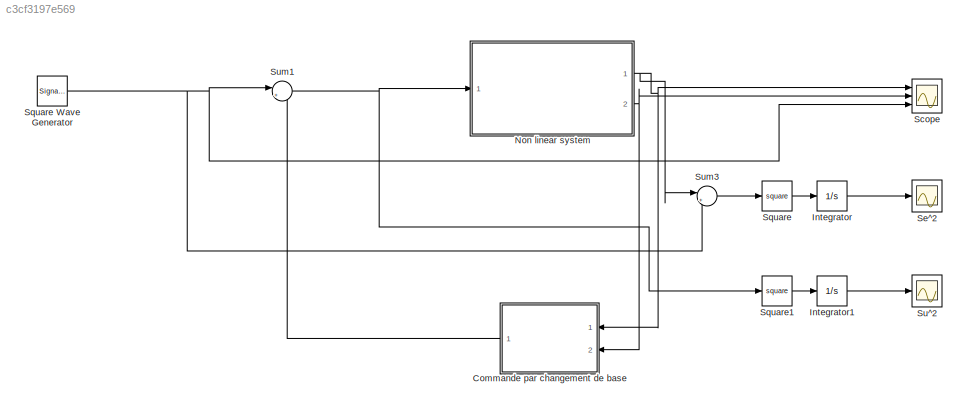
MODEL slx_c3cf3197e569
KIND model
CONFIG AbsTol = auto
CONFIG EnableMultiTasking = off
CONFIG FixedStep = auto
CONFIG MaxStep = auto
CONFIG MinStep = auto
CONFIG RelTol = 1e-3
CONFIG SampleTimeConstraint = Unconstrained
CONFIG Solver = VariableStepAuto
CONFIG SolverName = VariableStepAuto
CONFIG StartTime = 0.0
CONFIG StopTime = 100
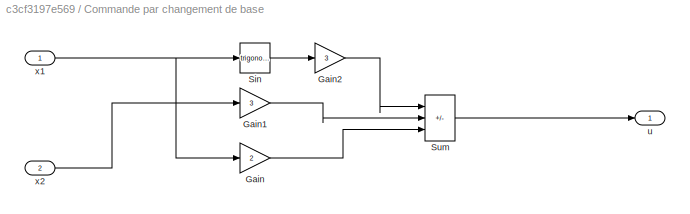
BLOCK [SubSystem] Commande par changement de base
  NameLocation = top
  Ports = [2, 1]
  RequestExecContextInheritance = off
BLOCK [Gain] Commande par changement de base/Gain
  Gain = 2
BLOCK [Gain] Commande par changement de base/Gain1
  Gain = 3
BLOCK [Gain] Commande par changement de base/Gain2
  Gain = 3
BLOCK [Trigonometry] Commande par changement de base/Sin
  Ports = [1, 1]
BLOCK [Sum] Commande par changement de base/Sum
  IconShape = rectangular
  Inputs = |---
  Ports = [3, 1]
BLOCK [Outport] Commande par changement de base/u
BLOCK [Inport] Commande par changement de base/x1
BLOCK [Inport] Commande par changement de base/x2
  Port = 2
BLOCK [Integrator] Integrator
  Ports = [1, 1]
BLOCK [Integrator] Integrator1
  Ports = [1, 1]
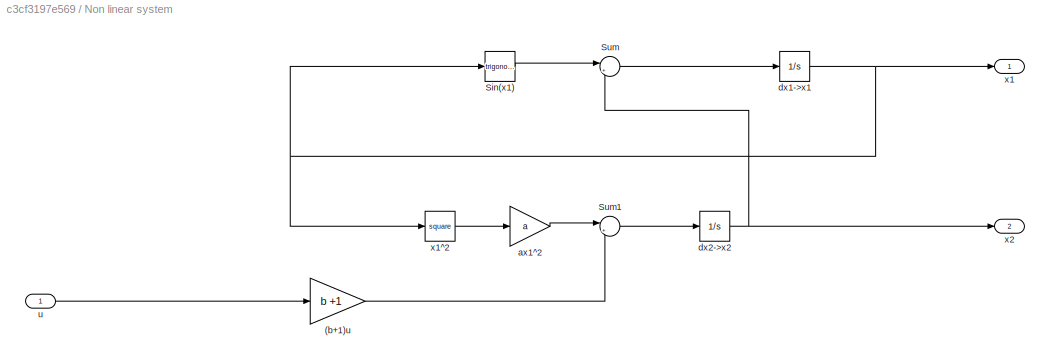
BLOCK [SubSystem] Non linear system
  Ports = [1, 2]
  RequestExecContextInheritance = off
BLOCK [Gain] Non linear system/(b+1)u
  Gain = b +1
BLOCK [Trigonometry] Non linear system/Sin(x1)
  Ports = [1, 1]
BLOCK [Sum] Non linear system/Sum
  Inputs = |++
  Ports = [2, 1]
BLOCK [Sum] Non linear system/Sum1
  Inputs = |++
  Ports = [2, 1]
BLOCK [Gain] Non linear system/ax1^2
  Gain = a
BLOCK [Integrator] Non linear system/dx1->x1
  Ports = [1, 1]
BLOCK [Integrator] Non linear system/dx2->x2
  Ports = [1, 1]
BLOCK [Inport] Non linear system/u
BLOCK [Outport] Non linear system/x1
BLOCK [Math] Non linear system/x1^2
  Operator = square
  Ports = [1, 1]
BLOCK [Outport] Non linear system/x2
  Port = 2
BLOCK [Scope] Scope
  Floating = off
  NumInputPorts = 3
  Ports = [3]
  ScopeSpecificationString = Simulink.scopes.TimeScopeBlockCfg('CurrentConfiguration', extmgr.ConfigurationSet(extmgr.Configuration('Core','General UI',true),extmgr.Configuration('Core','Source UI',true),extmgr.Configuration('Sources','WiredSimulink',true),extmgr.Configuration('Visuals','Time Domain',true,'SerializedDisplays',{struct('MinYLimReal','-1.25324','MaxYLimReal','1.27912','YLabelReal','','MinYLimMag','0.00000','MaxY...<+1385ch>
BLOCK [Scope] Se^2
  Floating = off
  NumInputPorts = 1
  Ports = [1]
  ScopeSpecificationString = Simulink.scopes.TimeScopeBlockCfg('CurrentConfiguration', extmgr.ConfigurationSet(extmgr.Configuration('Core','General UI',true),extmgr.Configuration('Core','Source UI',true),extmgr.Configuration('Sources','WiredSimulink',true,'DataLoggingVariableName','ScopeData1'),extmgr.Configuration('Visuals','Time Domain',true,'SerializedDisplays',{struct('MinYLimReal','-3.68613','MaxYLimReal','33.1752','YLab...<+1369ch>
BLOCK [Math] Square
  Operator = square
  Ports = [1, 1]
BLOCK [SignalGenerator] Square Wave Generator
  Frequency = 0.1
  Ports = [0, 1]
  Units = rad/sec
  WaveForm = square
BLOCK [Math] Square1
  Operator = square
  Ports = [1, 1]
BLOCK [Scope] Su^2
  Floating = off
  NumInputPorts = 1
  Ports = [1]
  ScopeSpecificationString = Simulink.scopes.TimeScopeBlockCfg('CurrentConfiguration', extmgr.ConfigurationSet(extmgr.Configuration('Core','General UI',true),extmgr.Configuration('Core','Source UI',true),extmgr.Configuration('Sources','WiredSimulink',true,'DataLoggingVariableName','ScopeData2'),extmgr.Configuration('Visuals','Time Domain',true,'SerializedDisplays',{struct('MinYLimReal','-0.46841','MaxYLimReal','4.21573','YLab...<+1370ch>
BLOCK [Sum] Sum1
  Inputs = |++
  Ports = [2, 1]
BLOCK [Sum] Sum3
  Inputs = |+-
  Ports = [2, 1]
LINE Commande par changement de base/Gain1:1 -> Commande par changement de base/Sum:2
LINE Commande par changement de base/Gain2:1 -> Commande par changement de base/Sum:1
LINE Commande par changement de base/Gain:1 -> Commande par changement de base/Sum:3
LINE Commande par changement de base/Sin:1 -> Commande par changement de base/Gain2:1
LINE Commande par changement de base/Sum:1 -> Commande par changement de base/u:1
NET Commande par changement de base/x1:1 -> Commande par changement de base/Gain:1, Commande par changement de base/Sin:1
LINE Commande par changement de base/x2:1 -> Commande par changement de base/Gain1:1
LINE Commande par changement de base:1 -> Sum1:2
LINE Integrator1:1 -> Su^2:1
LINE Integrator:1 -> Se^2:1
LINE Non linear system/(b+1)u:1 -> Non linear system/Sum1:2
LINE Non linear system/Sin(x1):1 -> Non linear system/Sum:1
LINE Non linear system/Sum1:1 -> Non linear system/dx2->x2:1
LINE Non linear system/Sum:1 -> Non linear system/dx1->x1:1
LINE Non linear system/ax1^2:1 -> Non linear system/Sum1:1
NET Non linear system/dx1->x1:1 -> Non linear system/Sin(x1):1, Non linear system/x1:1, Non linear system/x1^2:1
NET Non linear system/dx2->x2:1 -> Non linear system/Sum:2, Non linear system/x2:1
LINE Non linear system/u:1 -> Non linear system/(b+1)u:1
LINE Non linear system/x1^2:1 -> Non linear system/ax1^2:1
NET Non linear system:1 -> Commande par changement de base:1, Scope:1, Sum3:1
NET Non linear system:2 -> Commande par changement de base:2, Scope:2
NET Square Wave Generator:1 -> Scope:3, Sum1:1, Sum3:2
LINE Square1:1 -> Integrator1:1
LINE Square:1 -> Integrator:1
NET Sum1:1 -> Non linear system:1, Square1:1
LINE Sum3:1 -> Square:1
note: NET lines group one-source signal fan-out (src -> all destinations, sorted); 1:1 wires keep LINE
